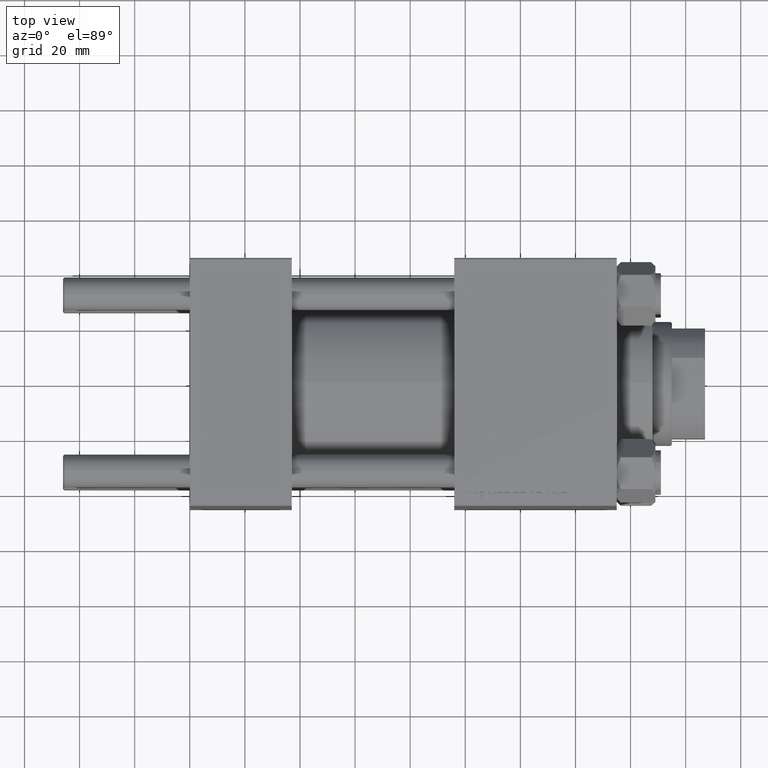
[diagram: clean part render]
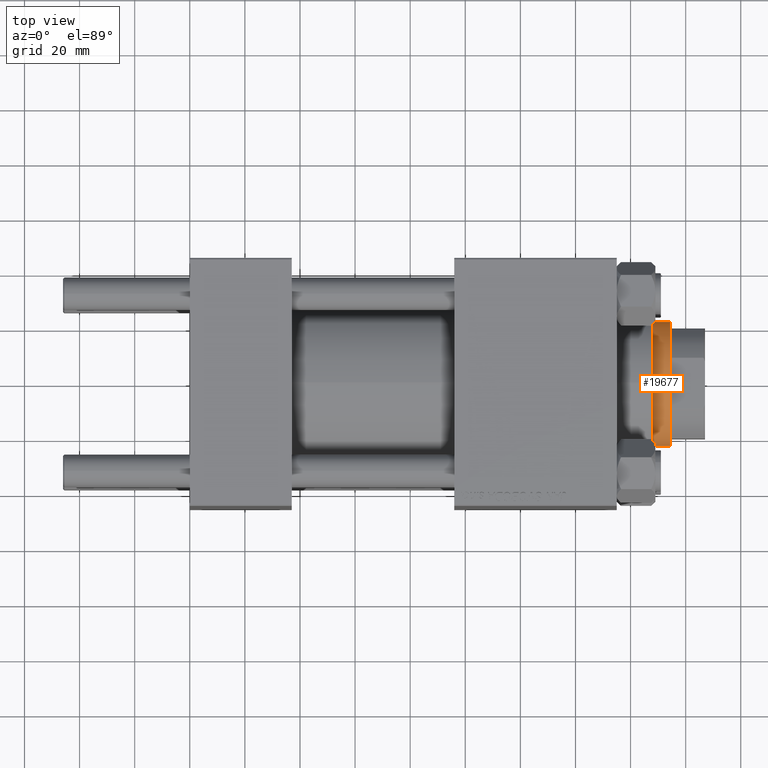
[diagram: same view with one face highlighted and labeled with its STEP entity id]
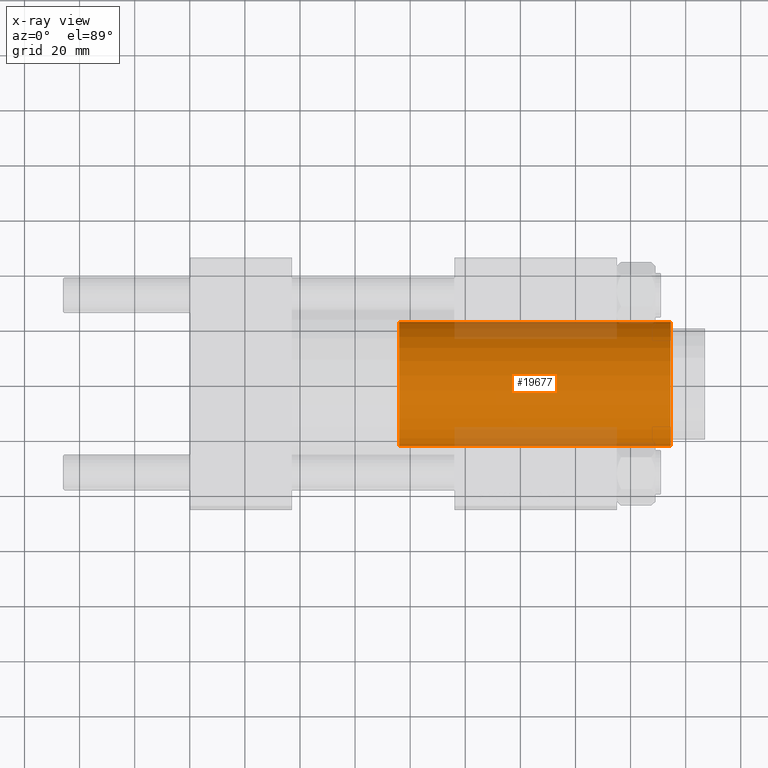
[diagram: x-ray of the same camera — body ghosted, the highlighted face saturated]
A machine part, top view. The second image highlights one B-rep face of the part: STEP entity #19677.
The next image is the same camera in x-ray: the body ghosted, the highlighted face saturated — about 18% of this face is hidden behind the body in this view.
In plain terms, the highlighted cylindrical surface (partial cylindrical patch) has radius 22.5 mm, axis along (-1, 0, 0).
Its self-contained STEP definition (entity closure, byte-faithful):
#1827 = CIRCLE ( 'NONE', #28532, 22.50000000000000355 ) ;
#2560 = DIRECTION ( 'NONE',  ( -1.000000000000000000, 0.000000000000000000, 0.000000000000000000 ) ) ;
#2606 = CARTESIAN_POINT ( 'NONE',  ( 0.000000000000000000, 0.000000000000000000, 137.5000000000000568 ) ) ;
#5496 = VERTEX_POINT ( 'NONE', #33347 ) ;
#7175 = AXIS2_PLACEMENT_3D ( 'NONE', #37126, #29830, #2560 ) ;
#8491 = LINE ( 'NONE', #43057, #29057 ) ;
#11168 = DIRECTION ( 'NONE',  ( 0.000000000000000000, 0.000000000000000000, -1.000000000000000000 ) ) ;
#14284 = CARTESIAN_POINT ( 'NONE',  ( -22.50000000000000355, 0.000000000000000000, 39.00000000000000000 ) ) ;
#14413 = CYLINDRICAL_SURFACE ( 'NONE', #7175, 22.50000000000000355 ) ;
#17564 = CARTESIAN_POINT ( 'NONE',  ( 0.000000000000000000, 0.000000000000000000, 39.00000000000000000 ) ) ;
#17987 = LINE ( 'NONE', #22958, #25802 ) ;
#18316 = DIRECTION ( 'NONE',  ( 1.000000000000000000, 0.000000000000000000, 0.000000000000000000 ) ) ;
#19677 = ADVANCED_FACE ( 'NONE', ( #21744 ), #14413, .T. ) ;
#21744 = FACE_OUTER_BOUND ( 'NONE', #38936, .T. ) ;
#22958 = CARTESIAN_POINT ( 'NONE',  ( 22.50000000000000355, 2.755455298081545172E-15, 138.0000000000000000 ) ) ;
#23807 = VERTEX_POINT ( 'NONE', #31169 ) ;
#25802 = VECTOR ( 'NONE', #46406, 1000.000000000000000 ) ;
#26530 = ORIENTED_EDGE ( 'NONE', *, *, #41114, .T. ) ;
#26922 = AXIS2_PLACEMENT_3D ( 'NONE', #17564, #29682, #18316 ) ;
#27445 = DIRECTION ( 'NONE',  ( -0.000000000000000000, -0.000000000000000000, -1.000000000000000000 ) ) ;
#28532 = AXIS2_PLACEMENT_3D ( 'NONE', #2606, #11168, #38166 ) ;
#29057 = VECTOR ( 'NONE', #27445, 1000.000000000000000 ) ;
#29238 = ORIENTED_EDGE ( 'NONE', *, *, #44874, .T. ) ;
#29682 = DIRECTION ( 'NONE',  ( 0.000000000000000000, 0.000000000000000000, 1.000000000000000000 ) ) ;
#29830 = DIRECTION ( 'NONE',  ( -0.000000000000000000, -0.000000000000000000, -1.000000000000000000 ) ) ;
#31169 = CARTESIAN_POINT ( 'NONE',  ( -22.50000000000000355, 0.000000000000000000, 137.5000000000000568 ) ) ;
#31238 = EDGE_CURVE ( 'NONE', #5496, #34098, #17987, .T. ) ;
#31805 = EDGE_CURVE ( 'NONE', #23807, #42841, #8491, .T. ) ;
#33347 = CARTESIAN_POINT ( 'NONE',  ( 22.50000000000000355, 2.755455298081545172E-15, 137.5000000000000568 ) ) ;
#34098 = VERTEX_POINT ( 'NONE', #41798 ) ;
#37126 = CARTESIAN_POINT ( 'NONE',  ( 0.000000000000000000, 0.000000000000000000, 138.0000000000000000 ) ) ;
#37293 = ORIENTED_EDGE ( 'NONE', *, *, #31805, .T. ) ;
#38166 = DIRECTION ( 'NONE',  ( 1.000000000000000000, 0.000000000000000000, 0.000000000000000000 ) ) ;
#38936 = EDGE_LOOP ( 'NONE', ( #40488, #26530, #37293, #29238 ) ) ;
#40488 = ORIENTED_EDGE ( 'NONE', *, *, #31238, .F. ) ;
#41114 = EDGE_CURVE ( 'NONE', #5496, #23807, #1827, .T. ) ;
#41798 = CARTESIAN_POINT ( 'NONE',  ( 22.50000000000000355, 2.755455298081545172E-15, 39.00000000000000000 ) ) ;
#42841 = VERTEX_POINT ( 'NONE', #14284 ) ;
#43057 = CARTESIAN_POINT ( 'NONE',  ( -22.50000000000000355, 0.000000000000000000, 138.0000000000000000 ) ) ;
#44874 = EDGE_CURVE ( 'NONE', #42841, #34098, #48652, .T. ) ;
#46406 = DIRECTION ( 'NONE',  ( -0.000000000000000000, -0.000000000000000000, -1.000000000000000000 ) ) ;
#48652 = CIRCLE ( 'NONE', #26922, 22.50000000000000355 ) ;